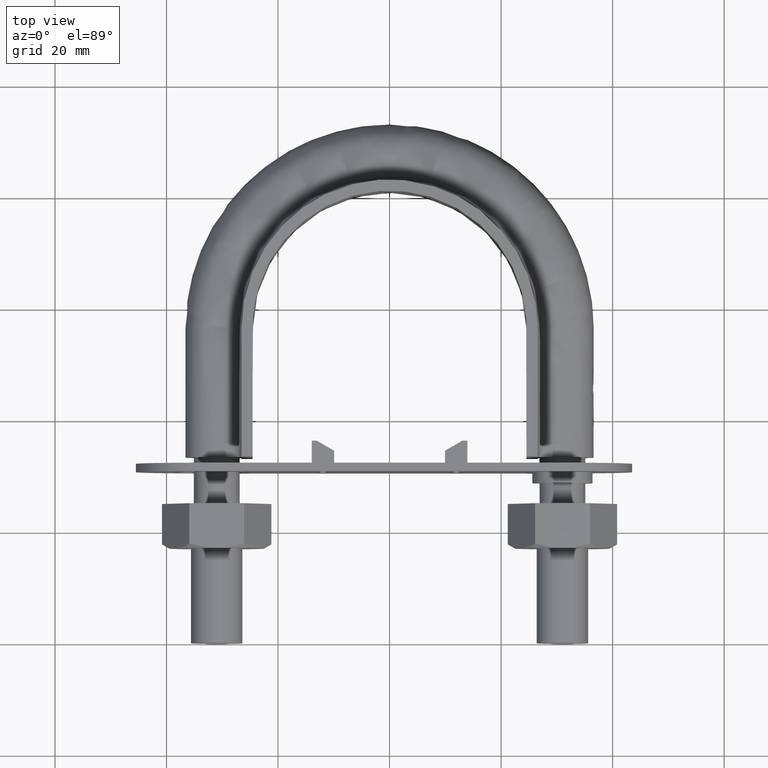
[diagram: clean part render]
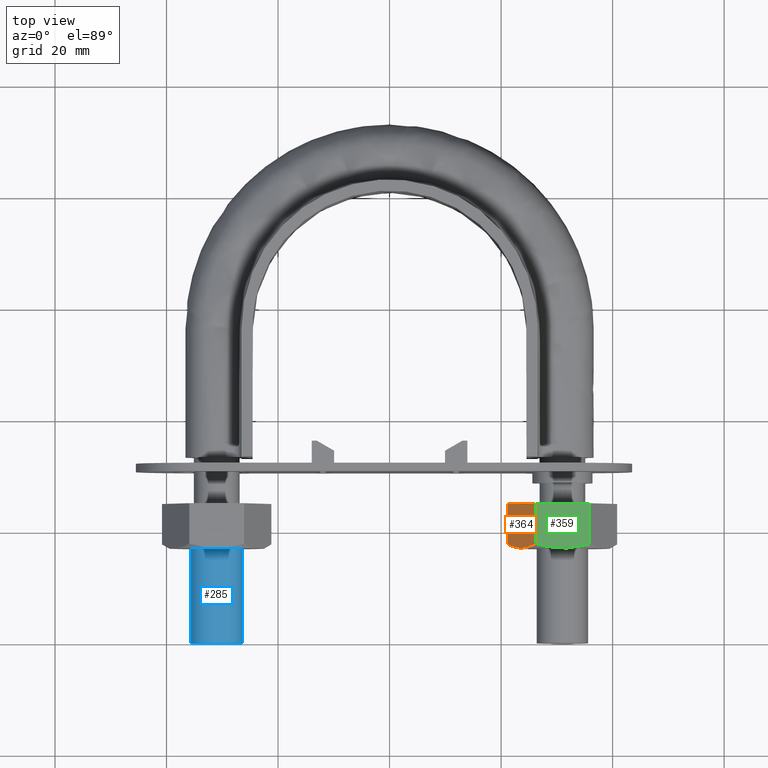
[diagram: same view with three faces highlighted in distinct colors, each labeled with its STEP entity id]
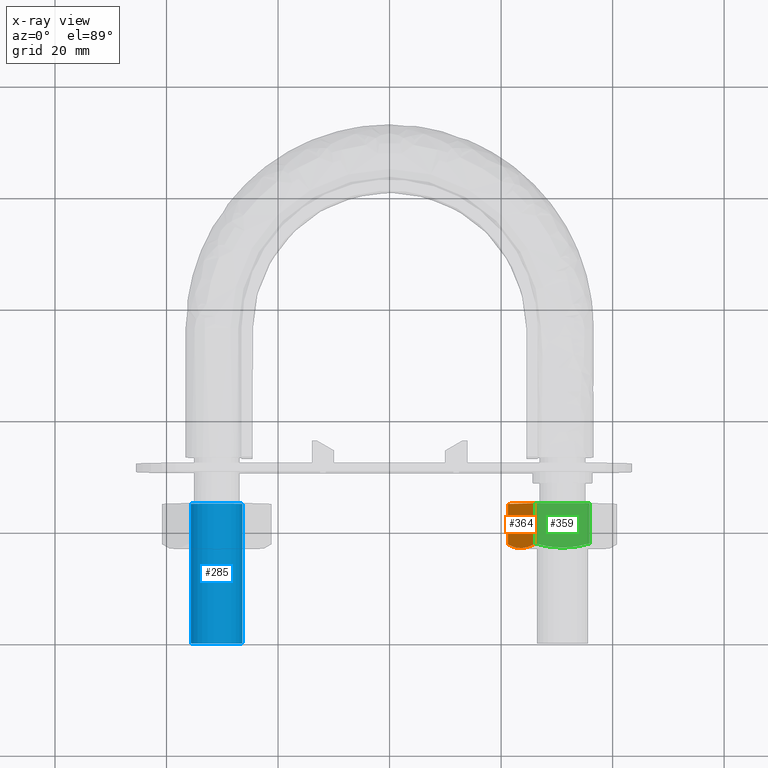
[diagram: x-ray of the same camera — body ghosted, the three highlighted faces saturated]
A machine part, top view with three faces highlighted in distinct colors.
The next image is the same camera in x-ray (body ghosted, the three faces saturated) — at least one of them is partly hidden behind the body in this view.
Their STEP definitions:

[orange] entity #364 — the highlighted planar face has unit normal (0.866, -0, -0.5).
#364 = ADVANCED_FACE( '', ( #603 ), #604, .F. );
#603 = FACE_OUTER_BOUND( '', #1685, .T. );
#604 = PLANE( '', #1686 );
#1685 = EDGE_LOOP( '', ( #2434, #2435, #2436, #2437, #2438 ) );
#1686 = AXIS2_PLACEMENT_3D( '', #2439, #2440, #2441 );
#2434 = ORIENTED_EDGE( '', *, *, #2767, .F. );
#2435 = ORIENTED_EDGE( '', *, *, #2734, .F. );
#2436 = ORIENTED_EDGE( '', *, *, #2768, .F. );
#2437 = ORIENTED_EDGE( '', *, *, #2751, .F. );
#2438 = ORIENTED_EDGE( '', *, *, #2762, .F. );
#2439 = CARTESIAN_POINT( '', ( 21.1850454237765, 25.0000000000000, -8.11985792189045E-011 ) );
#2440 = DIRECTION( '', ( 0.866025403788584, -5.90322481846188E-017, -0.499999999992820 ) );
#2441 = DIRECTION( '', ( -2.44921270764475E-016, -1.00000000000000, -3.06151588455594E-016 ) );
#2734 = EDGE_CURVE( '', #3097, #3100, #3101, .T. );
#2751 = EDGE_CURVE( '', #3129, #3131, #3132, .T. );
#2762 = EDGE_CURVE( '', #3150, #3129, #3152, .T. );
#2767 = EDGE_CURVE( '', #3100, #3150, #3159, .T. );
#2768 = EDGE_CURVE( '', #3131, #3097, #3160, .F. );
#3097 = VERTEX_POINT( '', #3893 );
#3100 = VERTEX_POINT( '', #3896 );
#3101 = B_SPLINE_CURVE_WITH_KNOTS( '', 3, ( #3897, #3898, #3899, #3900, #3901, #3902 ), .UNSPECIFIED., .F., .F., ( 4, 2, 4 ), ( 0.0107224888714707, 0.0132032657403440, 0.0156840426092173 ), .UNSPECIFIED. );
#3129 = VERTEX_POINT( '', #3952 );
#3131 = VERTEX_POINT( '', #3954 );
#3132 = LINE( '', #3955, #3956 );
#3150 = VERTEX_POINT( '', #3978 );
#3152 = LINE( '', #3980, #3981 );
#3159 = B_SPLINE_CURVE_WITH_KNOTS( '', 3, ( #4001, #4002, #4003, #4004, #4005, #4006 ), .UNSPECIFIED., .F., .F., ( 4, 2, 4 ), ( 0.0156840426092173, 0.0181633795370699, 0.0206427164649225 ), .UNSPECIFIED. );
#3160 = LINE( '', #4007, #4008 );
#3893 = CARTESIAN_POINT( '', ( 26.0775337474134, 17.7505553499468, 8.47403835205766 ) );
#3896 = CARTESIAN_POINT( '', ( 23.6387840677970, 17.0000000000003, 4.24999999993898 ) );
#3897 = CARTESIAN_POINT( '', ( 26.0775337474134, 17.7505553499469, 8.47403835205764 ) );
#3898 = CARTESIAN_POINT( '', ( 25.6802210342382, 17.5222200930418, 7.78587254633200 ) );
#3899 = CARTESIAN_POINT( '', ( 25.2793853789354, 17.3336547117177, 7.09160482584911 ) );
#3900 = CARTESIAN_POINT( '', ( 24.4674746525082, 17.0721149177821, 5.68533419644010 ) );
#3901 = CARTESIAN_POINT( '', ( 24.0563234445968, 17.0000000000004, 4.97319941473065 ) );
#3902 = CARTESIAN_POINT( '', ( 23.6387840677970, 17.0000000000004, 4.24999999993896 ) );
#3952 = CARTESIAN_POINT( '', ( 21.2000343881807, 25.0000000000000, 0.0259616478203055 ) );
#3954 = CARTESIAN_POINT( '', ( 26.0775337474134, 25.0000000000000, 8.47403835205766 ) );
#3955 = CARTESIAN_POINT( '', ( 18.7387840678676, 25.0000000000000, -4.23704895718882 ) );
#3956 = VECTOR( '', #4371, 999.999999999987 );
#3978 = CARTESIAN_POINT( '', ( 21.2000343881807, 17.7505553499468, 0.0259616478203033 ) );
#3980 = CARTESIAN_POINT( '', ( 21.2000343881807, 25.0000000000000, 0.0259616478203055 ) );
#3981 = VECTOR( '', #4394, 999.999999999987 );
#4001 = CARTESIAN_POINT( '', ( 23.6387840677970, 17.0000000000004, 4.24999999993896 ) );
#4002 = CARTESIAN_POINT( '', ( 23.2214870473671, 17.0000000000004, 3.52722035869344 ) );
#4003 = CARTESIAN_POINT( '', ( 22.8092349312082, 17.0723104611267, 2.81317874796474 ) );
#4004 = CARTESIAN_POINT( '', ( 21.9973803563409, 17.3339943747737, 1.40700537591036 ) );
#4005 = CARTESIAN_POINT( '', ( 21.5968551617128, 17.5225028103097, 0.713275389089903 ) );
#4006 = CARTESIAN_POINT( '', ( 21.2000343881807, 17.7505553499469, 0.0259616478203199 ) );
#4007 = CARTESIAN_POINT( '', ( 26.0775337474134, 25.0000000000000, 8.47403835205766 ) );
#4008 = VECTOR( '', #4399, 999.999999999987 );
#4371 = DIRECTION( '', ( 0.499999999992820, -3.87595688393252E-016, 0.866025403788584 ) );
#4394 = DIRECTION( '', ( 2.44921270764475E-016, 1.00000000000000, 3.06151588455594E-016 ) );
#4399 = DIRECTION( '', ( 2.44921270764475E-016, 1.00000000000000, 3.06151588455594E-016 ) );

[blue] entity #285 — the highlighted cylindrical surface (bore or boss wall) has radius 4.6 mm, axis along (0, 1, 0).
#285 = ADVANCED_FACE( '', ( #426, #427 ), #428, .T. );
#426 = FACE_OUTER_BOUND( '', #1508, .T. );
#427 = FACE_OUTER_BOUND( '', #1509, .T. );
#428 = CYLINDRICAL_SURFACE( '', #1510, 4.60000000000000 );
#1508 = EDGE_LOOP( '', ( #1852 ) );
#1509 = EDGE_LOOP( '', ( #1853 ) );
#1510 = AXIS2_PLACEMENT_3D( '', #1854, #1855, #1856 );
#1852 = ORIENTED_EDGE( '', *, *, #2592, .T. );
#1853 = ORIENTED_EDGE( '', *, *, #2591, .F. );
#1854 = CARTESIAN_POINT( '', ( -31.0000000000000, 25.0000000000000, 7.85278824388600E-015 ) );
#1855 = DIRECTION( '', ( 2.44921270764475E-016, 1.00000000000000, 3.06151588455594E-016 ) );
#1856 = DIRECTION( '', ( 1.00000000000000, -2.44921270764475E-016, -3.74915180455534E-032 ) );
#2591 = EDGE_CURVE( '', #2859, #2859, #2860, .T. );
#2592 = EDGE_CURVE( '', #2861, #2861, #2862, .T. );
#2859 = VERTEX_POINT( '', #3497 );
#2860 = CIRCLE( '', #3498, 4.60000000000000 );
#2861 = VERTEX_POINT( '', #3499 );
#2862 = CIRCLE( '', #3500, 4.60000000000000 );
#3497 = CARTESIAN_POINT( '', ( -26.4000000000000, 6.46592154818215E-015, 1.98998532496137E-016 ) );
#3498 = AXIS2_PLACEMENT_3D( '', #4125, #4126, #4127 );
#3499 = CARTESIAN_POINT( '', ( -26.4000000000000, 25.0000000000000, 7.85278824388600E-015 ) );
#3500 = AXIS2_PLACEMENT_3D( '', #4128, #4129, #4130 );
#4125 = CARTESIAN_POINT( '', ( -31.0000000000000, 7.59255939369874E-015, 1.98998532496137E-016 ) );
#4126 = DIRECTION( '', ( -2.44921270764475E-016, -1.00000000000000, -3.06151588455594E-016 ) );
#4127 = DIRECTION( '', ( 1.00000000000000, -2.44921270764475E-016, -3.74915180455534E-032 ) );
#4128 = CARTESIAN_POINT( '', ( -31.0000000000000, 25.0000000000000, 7.85278824388600E-015 ) );
#4129 = DIRECTION( '', ( -2.44921270764475E-016, -1.00000000000000, -3.06151588455594E-016 ) );
#4130 = DIRECTION( '', ( 1.00000000000000, -2.44921270764475E-016, -3.74915180455534E-032 ) );

[green] entity #359 — the highlighted planar face has unit normal (0, 0, -1).
#359 = ADVANCED_FACE( '', ( #592 ), #593, .F. );
#592 = FACE_OUTER_BOUND( '', #1674, .T. );
#593 = PLANE( '', #1675 );
#1674 = EDGE_LOOP( '', ( #2389, #2390, #2391, #2392, #2393 ) );
#1675 = AXIS2_PLACEMENT_3D( '', #2394, #2395, #2396 );
#2389 = ORIENTED_EDGE( '', *, *, #2736, .F. );
#2390 = ORIENTED_EDGE( '', *, *, #2743, .F. );
#2391 = ORIENTED_EDGE( '', *, *, #2744, .F. );
#2392 = ORIENTED_EDGE( '', *, *, #2745, .F. );
#2393 = ORIENTED_EDGE( '', *, *, #2746, .F. );
#2394 = CARTESIAN_POINT( '', ( 26.0925227118176, 25.0000000000000, 8.49999999995917 ) );
#2395 = DIRECTION( '', ( 8.30657764794298E-012, 3.06151588453560E-016, -1.00000000000000 ) );
#2396 = DIRECTION( '', ( -1.00000000000000, 2.44921270767018E-016, -8.30657764794298E-012 ) );
#2736 = EDGE_CURVE( '', #3102, #3098, #3104, .T. );
#2743 = EDGE_CURVE( '', #3116, #3102, #3117, .T. );
#2744 = EDGE_CURVE( '', #3118, #3116, #3119, .F. );
#2745 = EDGE_CURVE( '', #3120, #3118, #3121, .T. );
#2746 = EDGE_CURVE( '', #3098, #3120, #3122, .T. );
#3098 = VERTEX_POINT( '', #3894 );
#3102 = VERTEX_POINT( '', #3903 );
#3104 = B_SPLINE_CURVE_WITH_KNOTS( '', 3, ( #3905, #3906, #3907, #3908, #3909, #3910, #3911, #3912 ), .UNSPECIFIED., .F., .F., ( 4, 2, 2, 4 ), ( 0.00493506423428086, 0.00616384870526305, 0.00739263317624524, 0.00985020211820963 ), .UNSPECIFIED. );
#3116 = VERTEX_POINT( '', #3924 );
#3117 = B_SPLINE_CURVE_WITH_KNOTS( '', 3, ( #3925, #3926, #3927, #3928, #3929, #3930 ), .UNSPECIFIED., .F., .F., ( 4, 2, 4 ), ( 4.83064900412344E-007, 0.00246777364959064, 0.00493506423428086 ), .UNSPECIFIED. );
#3118 = VERTEX_POINT( '', #3931 );
#3119 = LINE( '', #3932, #3933 );
#3120 = VERTEX_POINT( '', #3934 );
#3121 = LINE( '', #3935, #3936 );
#3122 = LINE( '', #3937, #3938 );
#3894 = CARTESIAN_POINT( '', ( 26.1225006406266, 17.7505553499468, 8.49999999995941 ) );
#3903 = CARTESIAN_POINT( '', ( 30.9999999999294, 17.0000000000003, 8.49999999999977 ) );
#3905 = CARTESIAN_POINT( '', ( 30.9999999999294, 17.0000000000004, 8.49999999999993 ) );
#3906 = CARTESIAN_POINT( '', ( 30.5862910567160, 17.0000000000004, 8.49999999999649 ) );
#3907 = CARTESIAN_POINT( '', ( 30.1705130745020, 17.0177112081767, 8.49999999999304 ) );
#3908 = CARTESIAN_POINT( '', ( 29.3480000229071, 17.0863021936216, 8.49999999998620 ) );
#3909 = CARTESIAN_POINT( '', ( 28.9394776661464, 17.1371116504198, 8.49999999998281 ) );
#3910 = CARTESIAN_POINT( '', ( 27.7211308742624, 17.3331494013917, 8.49999999997269 ) );
#3911 = CARTESIAN_POINT( '', ( 26.9184999348402, 17.5218253127359, 8.49999999996603 ) );
#3912 = CARTESIAN_POINT( '', ( 26.1225006406266, 17.7505553499469, 8.49999999995941 ) );
#3924 = CARTESIAN_POINT( '', ( 35.8774993592322, 17.7505553499468, 8.50000000004012 ) );
#3925 = CARTESIAN_POINT( '', ( 35.8774993592322, 17.7505553499469, 8.50000000004044 ) );
#3926 = CARTESIAN_POINT( '', ( 35.0793946306705, 17.5212203171281, 8.50000000003381 ) );
#3927 = CARTESIAN_POINT( '', ( 34.2755256941866, 17.3324525365444, 8.50000000002714 ) );
#3928 = CARTESIAN_POINT( '', ( 32.6512346173853, 17.0714148540590, 8.50000000001364 ) );
#3929 = CARTESIAN_POINT( '', ( 31.8306909831712, 17.0000000000004, 8.50000000000683 ) );
#3930 = CARTESIAN_POINT( '', ( 30.9999999999294, 17.0000000000004, 8.49999999999993 ) );
#3931 = CARTESIAN_POINT( '', ( 35.8774993592322, 25.0000000000000, 8.50000000004013 ) );
#3932 = CARTESIAN_POINT( '', ( 35.8774993592322, 25.0000000000000, 8.50000000004013 ) );
#3933 = VECTOR( '', #4359, 999.999999999987 );
#3934 = CARTESIAN_POINT( '', ( 26.1225006406266, 25.0000000000000, 8.49999999995941 ) );
#3935 = CARTESIAN_POINT( '', ( 26.0999999999294, 25.0000000000000, 8.49999999995923 ) );
#3936 = VECTOR( '', #4360, 1000.00000000002 );
#3937 = CARTESIAN_POINT( '', ( 26.1225006406266, 25.0000000000000, 8.49999999995942 ) );
#3938 = VECTOR( '', #4361, 999.999999999987 );
#4359 = DIRECTION( '', ( 2.44921270764475E-016, 1.00000000000000, 3.06151588455594E-016 ) );
#4360 = DIRECTION( '', ( 1.00000000000000, -2.44921270767008E-016, 8.27393709101885E-012 ) );
#4361 = DIRECTION( '', ( 2.44921270764475E-016, 1.00000000000000, 3.06151588455594E-016 ) );